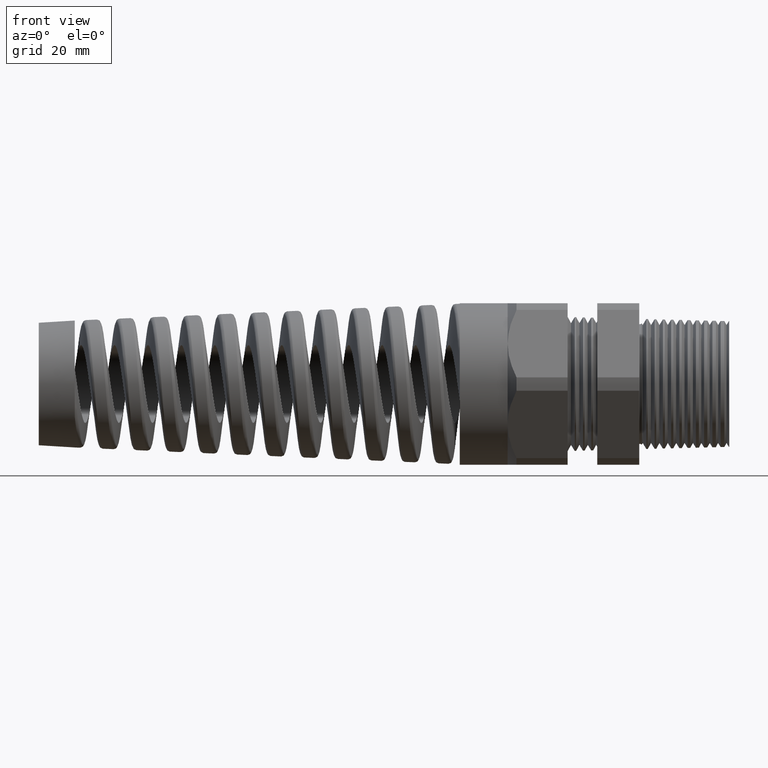
[diagram: clean part render]
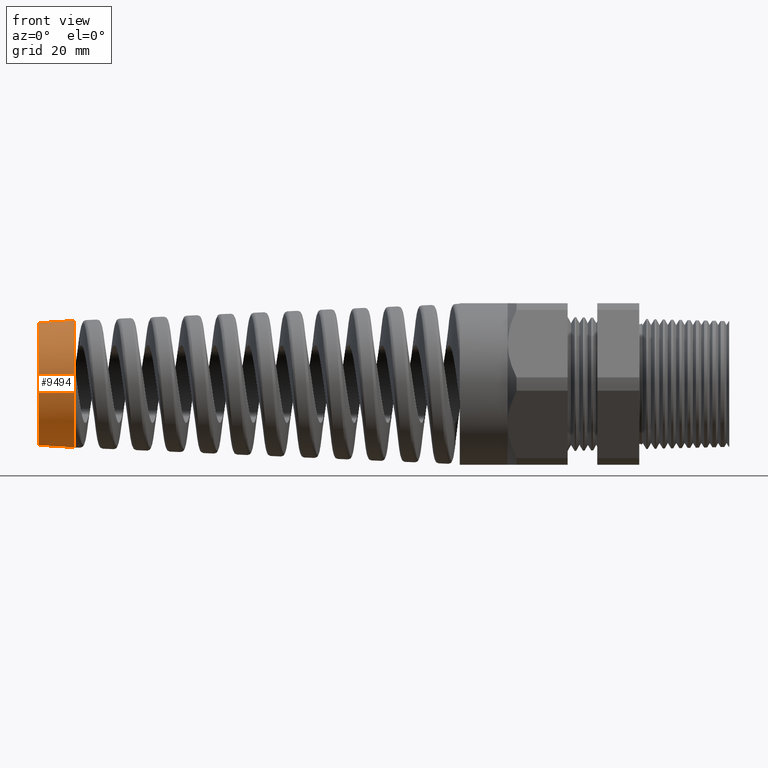
[diagram: same view with one face highlighted and labeled with its STEP entity id]
A machine part, front view. The second image highlights one B-rep face of the part: STEP entity #9494.
In plain terms, the highlighted conical surface has half-angle 3.5 deg.
Its self-contained STEP definition (entity closure, byte-faithful):
#3552 = CARTESIAN_POINT ( 'NONE',  ( -4.250000472440945000, 0.0000000000000000000, 0.0000000000000000000 ) ) ;
#3553 = AXIS2_PLACEMENT_3D ( 'NONE', #3552, #3615, #3614 ) ;
#3554 = CIRCLE ( 'NONE', #3553, 0.4018686470454270200 ) ;
#3555 = DIRECTION ( 'NONE',  ( 0.9981347984218669200, -7.476289853398327700E-018, -0.06104853953485701200 ) ) ;
#3556 = VECTOR ( 'NONE', #3555, 39.37007874015748900 ) ;
#3557 = CARTESIAN_POINT ( 'NONE',  ( -4.013780000000000600, -5.098406814932194300E-017, -0.4163165100731005500 ) ) ;
#3558 = LINE ( 'NONE', #3557, #3556 ) ;
#3559 = CARTESIAN_POINT ( 'NONE',  ( -4.250000472440945000, 0.0000000000000000000, 0.4018686470454270200 ) ) ;
#3566 = DIRECTION ( 'NONE',  ( 0.0000000000000000000, 0.0000000000000000000, 1.000000000000000000 ) ) ;
#3567 = DIRECTION ( 'NONE',  ( -1.000000000000000000, 0.0000000000000000000, 0.0000000000000000000 ) ) ;
#3568 = CARTESIAN_POINT ( 'NONE',  ( -4.013780000000000600, 0.0000000000000000000, 0.0000000000000000000 ) ) ;
#3569 = AXIS2_PLACEMENT_3D ( 'NONE', #3568, #3567, #3566 ) ;
#3570 = CIRCLE ( 'NONE', #3569, 0.4163165100731005500 ) ;
#3572 = CARTESIAN_POINT ( 'NONE',  ( -4.250000472440945000, -5.009939168875395400E-017, -0.4018686470454270200 ) ) ;
#3574 = CARTESIAN_POINT ( 'NONE',  ( -4.013780000000000600, 0.0000000000000000000, 0.4163165100731005500 ) ) ;
#3575 = DIRECTION ( 'NONE',  ( 0.9981347984218669200, 0.0000000000000000000, 0.06104853953485701200 ) ) ;
#3576 = VECTOR ( 'NONE', #3575, 39.37007874015748900 ) ;
#3577 = CARTESIAN_POINT ( 'NONE',  ( -4.013780000000000600, 0.0000000000000000000, 0.4163165100731005500 ) ) ;
#3581 = LINE ( 'NONE', #3577, #3576 ) ;
#3603 = DIRECTION ( 'NONE',  ( 0.0000000000000000000, 0.0000000000000000000, 1.000000000000000000 ) ) ;
#3604 = DIRECTION ( 'NONE',  ( 1.000000000000000000, 0.0000000000000000000, 0.0000000000000000000 ) ) ;
#3605 = CARTESIAN_POINT ( 'NONE',  ( -4.013780000000000600, 0.0000000000000000000, 0.0000000000000000000 ) ) ;
#3606 = AXIS2_PLACEMENT_3D ( 'NONE', #3605, #3604, #3603 ) ;
#3607 = CONICAL_SURFACE ( 'NONE', #3606, 0.4163165100731005500, 0.06108652381980166800 ) ;
#3608 = FACE_OUTER_BOUND ( 'NONE', #9492, .T. ) ;
#3614 = DIRECTION ( 'NONE',  ( 0.0000000000000000000, 0.0000000000000000000, 1.000000000000000000 ) ) ;
#3615 = DIRECTION ( 'NONE',  ( -1.000000000000000000, 0.0000000000000000000, 0.0000000000000000000 ) ) ;
#5041 = VERTEX_POINT ( 'NONE', #8414 ) ;
#5394 = EDGE_CURVE ( 'NONE', #5041, #9127, #8462, .T. ) ;
#8414 = CARTESIAN_POINT ( 'NONE',  ( -4.013780000000000600, -0.3554535233858187600, -0.2167307760149748700 ) ) ;
#8458 = DIRECTION ( 'NONE',  ( 0.0000000000000000000, 0.0000000000000000000, -1.000000000000000000 ) ) ;
#8459 = DIRECTION ( 'NONE',  ( 1.000000000000000000, 0.0000000000000000000, 0.0000000000000000000 ) ) ;
#8460 = CARTESIAN_POINT ( 'NONE',  ( -4.013780000000000600, 0.0000000000000000000, 0.0000000000000000000 ) ) ;
#8461 = AXIS2_PLACEMENT_3D ( 'NONE', #8460, #8459, #8458 ) ;
#8462 = CIRCLE ( 'NONE', #8461, 0.4163165100736735400 ) ;
#9127 = VERTEX_POINT ( 'NONE', #16409 ) ;
#9270 = ORIENTED_EDGE ( 'NONE', *, *, #9272, .F. ) ;
#9272 = EDGE_CURVE ( 'NONE', #9488, #9478, #3581, .T. ) ;
#9477 = ORIENTED_EDGE ( 'NONE', *, *, #9484, .T. ) ;
#9478 = VERTEX_POINT ( 'NONE', #3574 ) ;
#9479 = ORIENTED_EDGE ( 'NONE', *, *, #5394, .F. ) ;
#9482 = VERTEX_POINT ( 'NONE', #3572 ) ;
#9484 = EDGE_CURVE ( 'NONE', #5041, #9478, #3570, .T. ) ;
#9487 = ORIENTED_EDGE ( 'NONE', *, *, #9489, .T. ) ;
#9488 = VERTEX_POINT ( 'NONE', #3559 ) ;
#9489 = EDGE_CURVE ( 'NONE', #9482, #9127, #3558, .T. ) ;
#9490 = EDGE_CURVE ( 'NONE', #9482, #9488, #3554, .T. ) ;
#9492 = EDGE_LOOP ( 'NONE', ( #9497, #9487, #9479, #9477, #9270 ) ) ;
#9494 = ADVANCED_FACE ( 'NONE', ( #3608 ), #3607, .T. ) ;
#9497 = ORIENTED_EDGE ( 'NONE', *, *, #9490, .F. ) ;
#16409 = CARTESIAN_POINT ( 'NONE',  ( -4.013780000000000600, -5.098406814932194300E-017, -0.4163165100731005500 ) ) ;